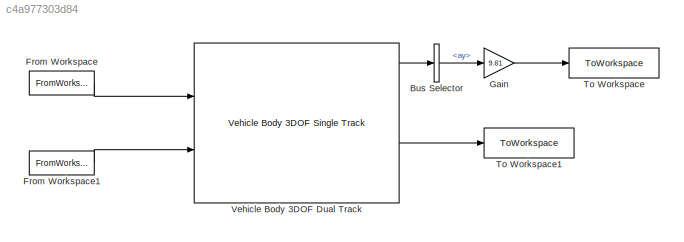
MODEL slx_c4a977303d84
KIND model
CONFIG AbsTol = auto
CONFIG EnableMultiTasking = off
CONFIG FixedStep = auto
CONFIG MaxStep = auto
CONFIG MinStep = auto
CONFIG RelTol = 1e-3
CONFIG SampleTimeConstraint = Unconstrained
CONFIG Solver = VariableStepAuto
CONFIG SolverName = VariableStepAuto
CONFIG StartTime = 0.0
CONFIG StopTime = 250
BLOCK [BusSelector] Bus Selector
  OutputSignals = BdyFrm.Cg.Acc.ay
  Ports = [1, 1]
BLOCK [FromWorkspace] From Workspace
  VariableName = WhlAngF
BLOCK [FromWorkspace] From Workspace1
  VariableName = xdotin
BLOCK [Gain] Gain
  Gain = 9.81
BLOCK [ToWorkspace] To Workspace
  FixptAsFi = on
  MaxDataPoints = inf
  Ports = [1]
  SampleTime = 0.1
  SaveFormat = Timeseries
  VariableName = lateral_acc
BLOCK [ToWorkspace] To Workspace1
  FixptAsFi = on
  MaxDataPoints = inf
  Ports = [1]
  SampleTime = 0.1
  SaveFormat = Timeseries
  VariableName = yaw_rate
BLOCK [Reference] Vehicle Body 3DOF Dual Track  REF=autolibshared/Vehicle Body 3DOF Single Track
  Ports = [2, 7]
  SourceBlock = autolibshared/Vehicle Body 3DOF Single Track
  SourceProductBaseCode = PW,MT,VE,VP
  SourceType = Vehicle Body 3DOF Lateral
LINE Bus Selector:1 -> Gain:1
LINE From Workspace1:1 -> Vehicle Body 3DOF Dual Track:2
LINE From Workspace:1 -> Vehicle Body 3DOF Dual Track:1
LINE Gain:1 -> To Workspace:1
LINE Vehicle Body 3DOF Dual Track:1 -> Bus Selector:1
LINE Vehicle Body 3DOF Dual Track:5 -> To Workspace1:1
